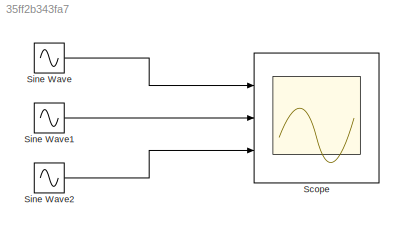
MODEL slx_35ff2b343fa7
KIND model
CONFIG AbsTol = auto
CONFIG EnableMultiTasking = off
CONFIG FixedStep = auto
CONFIG MaxStep = auto
CONFIG MinStep = auto
CONFIG RelTol = 1e-3
CONFIG SampleTimeConstraint = Unconstrained
CONFIG Solver = VariableStepAuto
CONFIG SolverName = VariableStepAuto
CONFIG StartTime = 0.0
CONFIG StopTime = 1
BLOCK [Scope] Scope
  Floating = off
  NumInputPorts = 3
  Ports = [3]
  ScopeSpecificationString = Simulink.scopes.TimeScopeBlockCfg('CurrentConfiguration', extmgr.ConfigurationSet(extmgr.Configuration('Core','General UI',true),extmgr.Configuration('Core','Source UI',true),extmgr.Configuration('Sources','WiredSimulink',true),extmgr.Configuration('Visuals','Time Domain',true,'SerializedDisplays',{struct('MinYLimReal','-108.25318','MaxYLimReal','108.25318','YLabelReal','','MinYLimMag',' 0.00000',...<+1435ch>
BLOCK [Sin] Sine Wave
  Amplitude = 100
  Frequency = 2*pi*5
  Ports = [0, 1]
  SampleTime = 0
BLOCK [Sin] Sine Wave1
  Amplitude = 100
  Frequency = 2*pi*5
  Phase = 2*pi/3
  Ports = [0, 1]
  SampleTime = 0
BLOCK [Sin] Sine Wave2
  Amplitude = 100
  Frequency = 2*pi*5
  Phase = 4*pi/3
  Ports = [0, 1]
  SampleTime = 0
LINE Sine Wave1:1 -> Scope:2
LINE Sine Wave2:1 -> Scope:3
LINE Sine Wave:1 -> Scope:1
